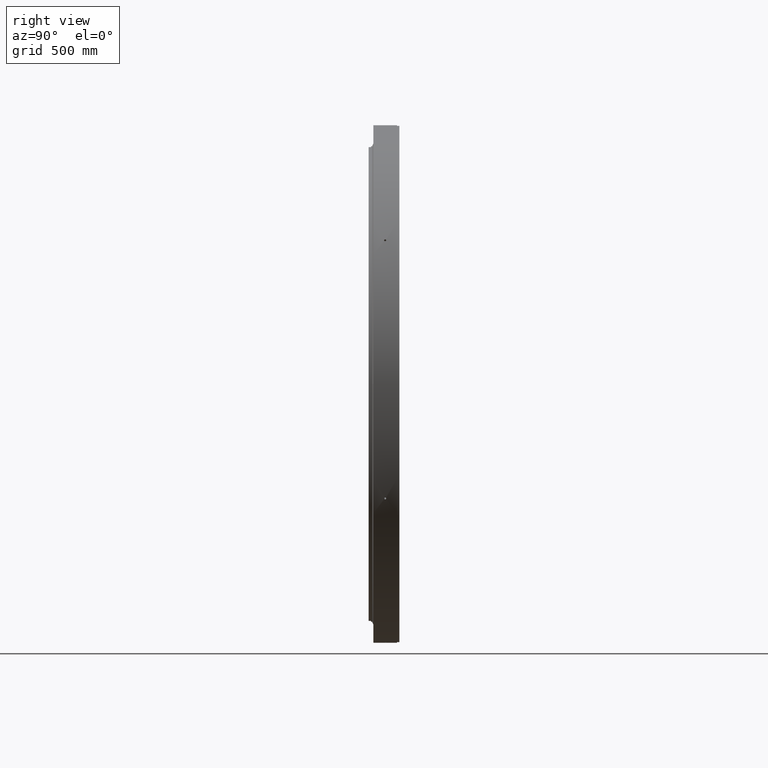
[diagram: clean part render]
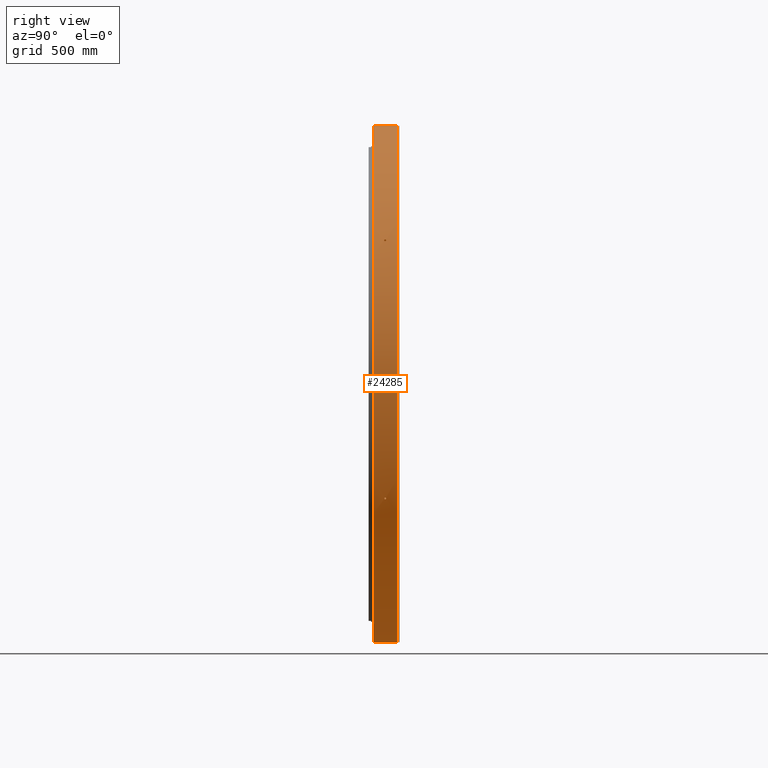
[diagram: same view with one face highlighted and labeled with its STEP entity id]
A machine part, right view. The second image highlights one B-rep face of the part: STEP entity #24285.
In plain terms, the highlighted cylindrical surface (partial cylindrical patch) has radius 1097.5 mm, axis along (0, -1, -0).
Its self-contained STEP definition (entity closure, byte-faithful):
#73 = ORIENTED_EDGE ( 'NONE', *, *, #28813, .F. ) ;
#224 = CARTESIAN_POINT ( 'NONE',  ( 912.5378995020361100, 4.499999983232450000, 609.7383307390241500 ) ) ;
#243 = CARTESIAN_POINT ( 'NONE',  ( 910.3498543650555300, -2.265789637349424600, 613.0057050081319400 ) ) ;
#327 = CARTESIAN_POINT ( 'NONE',  ( 910.7550180371598600, 3.161731403690899000, 612.3981934056763500 ) ) ;
#346 = CARTESIAN_POINT ( 'NONE',  ( 68.18893718354651400, 2.765460220137871100, -1095.382454497346100 ) ) ;
#431 = CARTESIAN_POINT ( 'NONE',  ( 910.0310799738661000, 0.2391090795432296900, 613.4728444865471600 ) ) ;
#451 = CARTESIAN_POINT ( 'NONE',  ( 983.7967049649508900, 4.382877028017383700, -486.4681479959126000 ) ) ;
#705 = CARTESIAN_POINT ( 'NONE',  ( 71.35263866576600800, -4.500000016767591800, -1095.178174691852500 ) ) ;
#766 = CARTESIAN_POINT ( 'NONE',  ( 984.7336266233876400, 4.439742533583422600, -484.5678248661136000 ) ) ;
#816 = CARTESIAN_POINT ( 'NONE',  ( 68.61993165268945900, -3.197407695075827200, -1095.352707974484200 ) ) ;
#932 = CARTESIAN_POINT ( 'NONE',  ( 67.28941847923424300, -0.06619500810931394600, -1095.435114007529800 ) ) ;
#1000 = CARTESIAN_POINT ( 'NONE',  ( 985.7251285425908200, 3.172688483100566200, -482.5476360061746300 ) ) ;
#1107 = CARTESIAN_POINT ( 'NONE',  ( 986.2821925867059500, 0.6262484178184799500, -481.4072132916784300 ) ) ;
#1178 = CARTESIAN_POINT ( 'NONE',  ( 76.26966760404383200, -0.01746724870365784800, -1094.846695882234800 ) ) ;
#1290 = CARTESIAN_POINT ( 'NONE',  ( 74.04158256470050500, -3.931889961238264500, -1095.000968683533500 ) ) ;
#1319 = EDGE_CURVE ( 'NONE', #23352, #24279, #31751, .T. ) ;
#1438 = CARTESIAN_POINT ( 'NONE',  ( 912.5378995020363400, -4.500000016767551800, 609.7383307390242600 ) ) ;
#1442 = CARTESIAN_POINT ( 'NONE',  ( 2.601341135008604100E-015, -22.16364734299516900, -7.744460120454373600E-016 ) ) ;
#1551 = CARTESIAN_POINT ( 'NONE',  ( 914.2864054385439700, -3.209744189989774300, 607.1133490319267600 ) ) ;
#1657 = CARTESIAN_POINT ( 'NONE',  ( 915.0294293143568900, -0.1107750201547480600, 605.9925357083707200 ) ) ;
#1675 = CARTESIAN_POINT ( 'NONE',  ( 986.2388264525659500, -1.166080515061297800, -481.5019973531369100 ) ) ;
#1771 = CARTESIAN_POINT ( 'NONE',  ( 982.9132370363265600, -3.197407695075369800, -488.2497499700593300 ) ) ;
#1831 = CARTESIAN_POINT ( 'NONE',  ( 72.71875459656436600, 4.439743989463296200, -1095.088249879918300 ) ) ;
#1887 = CARTESIAN_POINT ( 'NONE',  ( 982.3193461676414700, -0.06619500810242670600, -489.4432111948636900 ) ) ;
#1902 = CARTESIAN_POINT ( 'NONE',  ( 913.1921267789019800, 4.382877028017313500, 608.7588646611180800 ) ) ;
#1940 = CARTESIAN_POINT ( 'NONE',  ( 75.34457512825798600, 2.738322835730874000, -1094.910718904756800 ) ) ;
#2371 = AXIS2_PLACEMENT_3D ( 'NONE', #3535, #21564, #6130 ) ;
#2626 = VERTEX_POINT ( 'NONE', #16920 ) ;
#2728 = CARTESIAN_POINT ( 'NONE',  ( 910.0301623831983300, 0.0002739105560986134300, 613.4748183657820800 ) ) ;
#2824 = CARTESIAN_POINT ( 'NONE',  ( 911.0000509898268300, -3.598287907840402900, 612.0371154209349200 ) ) ;
#2913 = CARTESIAN_POINT ( 'NONE',  ( 910.7251214000212900, 3.106787147588669500, 612.4426549094808900 ) ) ;
#2917 = ORIENTED_EDGE ( 'NONE', *, *, #29714, .F. ) ;
#2933 = CARTESIAN_POINT ( 'NONE',  ( 69.51843838882982100, 3.932038729790863700, -1095.297431984197800 ) ) ;
#2935 = CARTESIAN_POINT ( 'NONE',  ( 982.3192627750792100, -2.316097242316461000E-008, -489.4436855857031800 ) ) ;
#3028 = CARTESIAN_POINT ( 'NONE',  ( 910.0301623831983300, 0.0002739105560986134300, 613.4748183657820800 ) ) ;
#3056 = CARTESIAN_POINT ( 'NONE',  ( 984.3178338321298500, 4.499999983232497100, -485.4118375153446400 ) ) ;
#3298 = CARTESIAN_POINT ( 'NONE',  ( 70.84047470035425000, -4.439702255745532800, -1095.211358202812800 ) ) ;
#3366 = EDGE_LOOP ( 'NONE', ( #26778, #2917, #14423, #20491 ) ) ;
#3413 = CARTESIAN_POINT ( 'NONE',  ( 68.60854869021766000, -3.186076337173788400, -1095.353421080562600 ) ) ;
#3530 = CARTESIAN_POINT ( 'NONE',  ( 67.28901109086749000, -0.02249327024288945400, -1095.435223340935400 ) ) ;
#3535 = CARTESIAN_POINT ( 'NONE',  ( 5.868486117720945300E-015, -49.99999999999987200, -1.747108677692887500E-015 ) ) ;
#3589 = CARTESIAN_POINT ( 'NONE',  ( 985.7370315257730900, 3.145279995475514000, -482.5233209583041700 ) ) ;
#3700 = CARTESIAN_POINT ( 'NONE',  ( 986.2996354738369300, 0.09451942255500460400, -481.3717260987532400 ) ) ;
#3780 = CARTESIAN_POINT ( 'NONE',  ( 76.26932570169016400, -0.06349154253395851400, -1094.846838106213700 ) ) ;
#3905 = CARTESIAN_POINT ( 'NONE',  ( 72.36780016582937900, -4.500000016767589100, -1095.111637491821100 ) ) ;
#4168 = CARTESIAN_POINT ( 'NONE',  ( 914.2979002452451600, -3.189160232434342200, 607.0960382035966600 ) ) ;
#4267 = CARTESIAN_POINT ( 'NONE',  ( 983.9010960670601700, -4.439702255739361700, -486.2560283947744300 ) ) ;
#4274 = CARTESIAN_POINT ( 'NONE',  ( 915.0301070131212100, -0.04507714348676061100, 605.9916975662196100 ) ) ;
#4292 = CARTESIAN_POINT ( 'NONE',  ( 986.0534403843581700, -2.265789637349314500, -481.8832477075387700 ) ) ;
#4386 = CARTESIAN_POINT ( 'NONE',  ( 982.9081631230706100, -3.186076337173833700, -488.2599644577688900 ) ) ;
#4441 = CARTESIAN_POINT ( 'NONE',  ( 73.83637575307813000, 4.014252917067884700, -1095.013361535506400 ) ) ;
#4499 = CARTESIAN_POINT ( 'NONE',  ( 982.3192371589657300, -0.02249327024038273000, -489.4436186702417300 ) ) ;
#4510 = CARTESIAN_POINT ( 'NONE',  ( 912.5378995020361100, 4.499999983232450000, 609.7383307390241500 ) ) ;
#4550 = CARTESIAN_POINT ( 'NONE',  ( 75.65048227629772300, 2.289108544850583500, -1094.889633876657200 ) ) ;
#4570 = LINE ( 'NONE', #22469, #18230 ) ;
#4795 = EDGE_CURVE ( 'NONE', #26895, #21974, #16905, .T. ) ;
#4800 = EDGE_CURVE ( 'NONE', #24279, #6011, #6302, .T. ) ;
#5087 = CARTESIAN_POINT ( 'NONE',  ( 984.3178338321298500, 4.499999983232497100, -485.4118375153446400 ) ) ;
#5097 = ORIENTED_EDGE ( 'NONE', *, *, #4795, .F. ) ;
#5307 = CARTESIAN_POINT ( 'NONE',  ( 910.0302821794598500, -0.03136014695189966200, 613.4747867868503600 ) ) ;
#5421 = CARTESIAN_POINT ( 'NONE',  ( 911.8832733604043600, -4.382848303121550200, 610.7177019620361300 ) ) ;
#5518 = CARTESIAN_POINT ( 'NONE',  ( 910.6514236039553200, 2.962532599781672300, 612.5522407132187900 ) ) ;
#5535 = CARTESIAN_POINT ( 'NONE',  ( 71.19214690530684200, 4.499999983232412700, -1095.188693877586500 ) ) ;
#5601 = LINE ( 'NONE', #29065, #31394 ) ;
#5902 = CARTESIAN_POINT ( 'NONE',  ( 69.72153478163706100, -4.013416554640188300, -1095.283059072108900 ) ) ;
#6011 = VERTEX_POINT ( 'NONE', #19599 ) ;
#6012 = CARTESIAN_POINT ( 'NONE',  ( 67.99929945843221900, -2.460531981859720200, -1095.391463000667000 ) ) ;
#6128 = CARTESIAN_POINT ( 'NONE',  ( 67.28897041490812100, -0.007205695980188448400, -1095.435262582063400 ) ) ;
#6130 = DIRECTION ( 'NONE',  ( 5.551115123125782700E-017, -3.793472749288689700E-017, 1.000000000000000000 ) ) ;
#6194 = CARTESIAN_POINT ( 'NONE',  ( 985.7854784900471300, 3.029410501801052600, -482.4243453701118900 ) ) ;
#6294 = DIRECTION ( 'NONE',  ( -1.173697223544192200E-016, 1.000000000000000000, 8.822830751849692900E-017 ) ) ;
#6302 = B_SPLINE_CURVE_WITH_KNOTS ( 'NONE', 3,
 ( #26045, #28634, #31212, #15794, #346, #18363, #2933, #20970, #5535, #23548 ),
 .UNSPECIFIED., .F., .F.,
 ( 4, 2, 2, 2, 4 ),
 ( 0.5001327818916325700, 0.6250995864187244300, 0.7500663909458162900, 0.8750331954729081400, 1.000000000000000000 ),
 .UNSPECIFIED. ) ;
#6376 = CARTESIAN_POINT ( 'NONE',  ( 76.26348067967936100, -0.2567127999465683700, -1094.847717071248100 ) ) ;
#6407 = EDGE_CURVE ( 'NONE', #17393, #26895, #27266, .T. ) ;
#6528 = EDGE_CURVE ( 'NONE', #9046, #29007, #29835, .T. ) ;
#6637 = CARTESIAN_POINT ( 'NONE',  ( 913.5227869983726800, -4.145600874871831800, 608.2615729323989600 ) ) ;
#6755 = CARTESIAN_POINT ( 'NONE',  ( 914.4960368546921900, -2.830677788866989200, 606.7976360153911600 ) ) ;
#6766 = CARTESIAN_POINT ( 'NONE',  ( 986.2998759440607700, -0.008347800966913610600, -481.3718442884412000 ) ) ;
#6854 = CARTESIAN_POINT ( 'NONE',  ( 983.4037208819872800, -4.013416554627578000, -487.2609092243353600 ) ) ;
#6857 = CARTESIAN_POINT ( 'NONE',  ( 915.0302666682492800, -0.01171491839850324200, 605.9915894569077200 ) ) ;
#6875 = CARTESIAN_POINT ( 'NONE',  ( 985.5397155083907100, -3.598287907840269200, -482.9306292956441700 ) ) ;
#6900 = CIRCLE ( 'NONE', #29448, 1097.500000000000000 ) ;
#6971 = CARTESIAN_POINT ( 'NONE',  ( 982.6364837763922000, -2.460531981842843500, -488.8066107297942200 ) ) ;
#7021 = DIRECTION ( 'NONE',  ( 1.173697223544192200E-016, -1.000000000000000000, -3.494217355385783800E-017 ) ) ;
#7025 = CARTESIAN_POINT ( 'NONE',  ( 74.68880287120212800, 3.448338068775783400, -1094.955662505075500 ) ) ;
#7063 = CARTESIAN_POINT ( 'NONE',  ( 71.77993433008977300, -4.500000016767590000, -1095.150168254366900 ) ) ;
#7087 = CARTESIAN_POINT ( 'NONE',  ( 982.3192508047995900, -0.007205695979453188500, -489.4436735172196200 ) ) ;
#7142 = CARTESIAN_POINT ( 'NONE',  ( 76.04413428059493200, 1.438962450433891600, -1094.862236665251200 ) ) ;
#7475 = VERTEX_POINT ( 'NONE', #19253 ) ;
#7912 = CARTESIAN_POINT ( 'NONE',  ( 910.0313034753276000, -0.1280020180876134100, 613.4737080425759400 ) ) ;
#7994 = CARTESIAN_POINT ( 'NONE',  ( 912.0148595022959600, 4.439742533575877600, 610.5204241836088400 ) ) ;
#8006 = CARTESIAN_POINT ( 'NONE',  ( 912.5378995020363400, -4.500000016767551800, 609.7383307390242600 ) ) ;
#8090 = CARTESIAN_POINT ( 'NONE',  ( 910.5481851436990200, 2.738265013289375500, 612.7057123205743200 ) ) ;
#8488 = CARTESIAN_POINT ( 'NONE',  ( 69.15183124348570200, -3.653221075928142300, -1095.319218855141100 ) ) ;
#8606 = CARTESIAN_POINT ( 'NONE',  ( 67.51401827766164800, -1.437042506700420700, -1095.421326452781600 ) ) ;
#8677 = ORIENTED_EDGE ( 'NONE', *, *, #27198, .F. ) ;
#8733 = CARTESIAN_POINT ( 'NONE',  ( 67.28896533048188600, -0.004604410396162232100, -1095.435269440904400 ) ) ;
#8798 = CARTESIAN_POINT ( 'NONE',  ( 985.8617530819123000, 2.828327746181565200, -482.2684765721870100 ) ) ;
#8925 = EDGE_CURVE ( 'NONE', #6011, #31995, #28163, .T. ) ;
#8982 = CARTESIAN_POINT ( 'NONE',  ( 76.23388014728124100, -0.5867728061178254500, -1094.850474504253700 ) ) ;
#9046 = VERTEX_POINT ( 'NONE', #5087 ) ;
#9238 = CARTESIAN_POINT ( 'NONE',  ( 913.9195589275834700, -3.751236185467976500, 607.6653384606534000 ) ) ;
#9283 = CARTESIAN_POINT ( 'NONE',  ( -1.953284746827274800E-013, 50.00000000000027700, -1097.500000000000000 ) ) ;
#9359 = CARTESIAN_POINT ( 'NONE',  ( 914.8417529838385500, -1.763920141843247700, 606.2761773979420900 ) ) ;
#9374 = CARTESIAN_POINT ( 'NONE',  ( 986.2998910283830600, -0.03136014695186684100, -481.3719491871105400 ) ) ;
#9461 = CARTESIAN_POINT ( 'NONE',  ( 983.1501844036178000, -3.653221075918390100, -487.7723668525071600 ) ) ;
#9467 = CARTESIAN_POINT ( 'NONE',  ( 915.0302887610676000, -0.004224009619075961400, 605.9915901041416600 ) ) ;
#9483 = CARTESIAN_POINT ( 'NONE',  ( 984.8386811201778500, -4.382848303121448000, -484.3552290352041600 ) ) ;
#9575 = CARTESIAN_POINT ( 'NONE',  ( 982.4197056941827700, -1.437042506667403100, -489.2418082863765700 ) ) ;
#9588 = CARTESIAN_POINT ( 'NONE',  ( 915.0302968266402100, -2.316102580031337200E-008, 605.9915933971710700 ) ) ;
#9620 = CARTESIAN_POINT ( 'NONE',  ( 74.96400227698276800, 3.172739574732600200, -1094.936823939046900 ) ) ;
#9681 = CARTESIAN_POINT ( 'NONE',  ( 982.3192542025167300, -0.004604410396078033800, -489.4436813498823000 ) ) ;
#9732 = CARTESIAN_POINT ( 'NONE',  ( 76.23021255733537800, 0.6263035944705973600, -1094.849041258847800 ) ) ;
#10510 = CARTESIAN_POINT ( 'NONE',  ( 910.0389320315971400, -0.3669906709226780600, 613.4633771851799800 ) ) ;
#10596 = CARTESIAN_POINT ( 'NONE',  ( 911.3911851878748400, 4.014239081954032800, 611.4508810157844900 ) ) ;
#10710 = CARTESIAN_POINT ( 'NONE',  ( 910.3769755717837600, 2.289046086583782700, 612.9600869409741800 ) ) ;
#10733 = CARTESIAN_POINT ( 'NONE',  ( 982.3736514307213400, 1.177865457651825500, -489.3399167126098600 ) ) ;
#10898 = CARTESIAN_POINT ( 'NONE',  ( 6.679197459402640700E-014, -49.99999999999991500, 1097.500000000000000 ) ) ;
#11094 = CARTESIAN_POINT ( 'NONE',  ( 68.87339174717236300, -3.431549365533876900, -1095.336788115144400 ) ) ;
#11210 = CARTESIAN_POINT ( 'NONE',  ( 67.32834592478408800, -0.6256154573501329100, -1095.432499635093100 ) ) ;
#11272 = CARTESIAN_POINT ( 'NONE',  ( 985.1009330973340600, 4.146168226461909100, -483.8203961905922500 ) ) ;
#11389 = CARTESIAN_POINT ( 'NONE',  ( 985.9791070481509200, 2.468412118953202200, -482.0285450273710800 ) ) ;
#11467 = CARTESIAN_POINT ( 'NONE',  ( 76.26969609074949100, 0.0003013363075116434600, -1094.846647981330300 ) ) ;
#11584 = CARTESIAN_POINT ( 'NONE',  ( 76.12647023859165100, -1.166011393596531300, -1094.858875202450900 ) ) ;
#11834 = CARTESIAN_POINT ( 'NONE',  ( 914.1144441274985900, -3.489101555534907600, 607.3722008483869100 ) ) ;
#11950 = CARTESIAN_POINT ( 'NONE',  ( 914.9887944423305700, -0.8681623217626230900, 606.0537575768473700 ) ) ;
#11967 = CARTESIAN_POINT ( 'NONE',  ( 986.2994674563708500, -0.1280020180875748000, -481.3733730274139500 ) ) ;
#12053 = CARTESIAN_POINT ( 'NONE',  ( 983.0261800809524900, -3.431549365528007800, -488.0222871597273400 ) ) ;
#12058 = CARTESIAN_POINT ( 'NONE',  ( 915.0302968266402100, -2.316102580031337200E-008, 605.9915933971710700 ) ) ;
#12082 = CARTESIAN_POINT ( 'NONE',  ( 984.3178338321299600, -4.500000016767503800, -485.4118375153447000 ) ) ;
#12167 = CARTESIAN_POINT ( 'NONE',  ( 982.3365457774696100, -0.6256154573185411800, -489.4081918518983800 ) ) ;
#12177 = CARTESIAN_POINT ( 'NONE',  ( 914.9676246742404800, 1.177865457651762000, 606.0905797911812000 ) ) ;
#12217 = CARTESIAN_POINT ( 'NONE',  ( 74.99101159590199500, 3.145331581479330600, -1094.934974675896000 ) ) ;
#12333 = CARTESIAN_POINT ( 'NONE',  ( 76.26967369412426500, 0.09455541117331364700, -1094.846403112976800 ) ) ;
#12518 = EDGE_CURVE ( 'NONE', #18128, #25917, #16330, .T. ) ;
#12655 = ORIENTED_EDGE ( 'NONE', *, *, #4800, .F. ) ;
#12982 = CARTESIAN_POINT ( 'NONE',  ( 910.0301837923857400, -0.008347800966945399500, 613.4748261727784200 ) ) ;
#13093 = CARTESIAN_POINT ( 'NONE',  ( 910.0636864029307800, -0.7327159428866311100, 613.4279300527707600 ) ) ;
#13188 = CARTESIAN_POINT ( 'NONE',  ( 910.9149975868045900, 3.448307353384322000, 612.1602627662742900 ) ) ;
#13290 = CARTESIAN_POINT ( 'NONE',  ( 910.1564314208639000, 1.438897800852267900, 613.2872882563883600 ) ) ;
#13313 = CARTESIAN_POINT ( 'NONE',  ( 982.7235010462278500, 2.765460220137972300, -488.6378753906580500 ) ) ;
#13685 = CARTESIAN_POINT ( 'NONE',  ( 68.72016813912965500, -3.294402531885704200, -1095.346422091993900 ) ) ;
#13750 = CARTESIAN_POINT ( 'NONE',  ( 984.5071540730512000, 4.499999983232486400, -485.0279340440197900 ) ) ;
#13799 = CARTESIAN_POINT ( 'NONE',  ( 67.29538970666929700, -0.2514981093699473800, -1095.434561062561200 ) ) ;
#13861 = CARTESIAN_POINT ( 'NONE',  ( 985.4790410378514000, 3.665395689966588000, -483.0499789629043900 ) ) ;
#13974 = CARTESIAN_POINT ( 'NONE',  ( 986.1496799357992100, 1.766153117482068800, -481.6794029598837600 ) ) ;
#14108 = EDGE_CURVE ( 'NONE', #31231, #7475, #15284, .T. ) ;
#14161 = CARTESIAN_POINT ( 'NONE',  ( 75.70361559354795100, -2.265740046220438700, -1094.888950679132700 ) ) ;
#14423 = ORIENTED_EDGE ( 'NONE', *, *, #19604, .T. ) ;
#14428 = CARTESIAN_POINT ( 'NONE',  ( 914.2095508453614900, -3.340846870250825600, 607.2290630266077200 ) ) ;
#14541 = CARTESIAN_POINT ( 'NONE',  ( 915.0236550860305400, -0.3358843994260788900, 606.0009913597173200 ) ) ;
#14558 = CARTESIAN_POINT ( 'NONE',  ( 986.2943349495586700, -0.3669906709226324300, -481.3851449796359800 ) ) ;
#14645 = CARTESIAN_POINT ( 'NONE',  ( 982.9579115456242600, -3.294402531882861100, -488.1597996851733100 ) ) ;
#14767 = CARTESIAN_POINT ( 'NONE',  ( 982.3218529169690800, -0.2514981093504257100, -489.4377634877299100 ) ) ;
#14777 = CARTESIAN_POINT ( 'NONE',  ( 914.5345638626771500, 2.765460220137887900, 606.7445791066899100 ) ) ;
#14820 = CARTESIAN_POINT ( 'NONE',  ( 75.10095209331812800, 3.029464083743852200, -1094.927443074831000 ) ) ;
#14861 = ORIENTED_EDGE ( 'NONE', *, *, #6407, .F. ) ;
#15284 = B_SPLINE_CURVE_WITH_KNOTS ( 'NONE', 3,
 ( #17085, #32533, #4267, #22295, #6854, #24890, #9461, #27484, #12053, #30060, #14645, #32655, #17203, #1771, #19805, #4386, #22417, #6971, #24995, #9575, #27597, #12167, #30170, #14767, #32763, #17313, #1887, #19924, #4499, #22534, #7087, #25105, #9681, #27709 ),
 .UNSPECIFIED., .F., .F.,
 ( 4, 2, 2, 2, 2, 1, 1, 1, 2, 2, 2, 2, 2, 2, 2, 1, 1, 1, 2, 4 ),
 ( 0.0000000000000000000, 0.1250331954734342800, 0.1875497932101513900, 0.2188080920785099000, 0.2344372415126925500, 0.2422518162297838700, 0.2461591035883264600, 0.2481127472675977400, 0.2490895691072274900, 0.2500663909468572300, 0.3125829886830515700, 0.3750995864192459600, 0.4376161841554403500, 0.4688744830235375100, 0.4845036324575852600, 0.4923182071746089500, 0.4962254945331207600, 0.4981791382123765800, 0.4991559600520045200, 0.5001327818916324600 ),
 .UNSPECIFIED. ) ;
#15586 = CARTESIAN_POINT ( 'NONE',  ( 910.0301652353742800, -0.001197594886125186400, 613.4748203525812200 ) ) ;
#15684 = CARTESIAN_POINT ( 'NONE',  ( 910.1606035168831600, -1.449327386706830600, 613.2858246215772600 ) ) ;
#15772 = CARTESIAN_POINT ( 'NONE',  ( 910.7610755887677700, 3.172688483100563100, 612.3891844634798600 ) ) ;
#15794 = CARTESIAN_POINT ( 'NONE',  ( 67.85605053856652100, 2.266285391154643700, -1095.403310495481700 ) ) ;
#15880 = CARTESIAN_POINT ( 'NONE',  ( 910.0519725690179500, 0.6262484178113856300, 613.4418274344674300 ) ) ;
#15903 = CARTESIAN_POINT ( 'NONE',  ( 983.3146199925896600, 3.932038729790961800, -487.4439823159467000 ) ) ;
#16260 = CARTESIAN_POINT ( 'NONE',  ( 68.63238051901967700, -3.209744189989879500, -1095.351927960502100 ) ) ;
#16298 = VERTEX_POINT ( 'NONE', #9283 ) ;
#16330 = CIRCLE ( 'NONE', #2371, 1097.500000000000000 ) ;
#16379 = CARTESIAN_POINT ( 'NONE',  ( 67.29021577001411500, -0.1107750201637237200, -1095.434998850796500 ) ) ;
#16437 = CARTESIAN_POINT ( 'NONE',  ( 912.5378995020361100, 4.499999983232450000, 609.7383307390241500 ) ) ;
#16440 = CARTESIAN_POINT ( 'NONE',  ( 985.7222007580121500, 3.179368269281526600, -482.5536166600208500 ) ) ;
#16544 = CARTESIAN_POINT ( 'NONE',  ( 986.2667504495083200, 0.8692179200555493200, -481.4390407212207500 ) ) ;
#16621 = CARTESIAN_POINT ( 'NONE',  ( 76.26969229481731800, -0.008262173784436277500, -1094.846670228106600 ) ) ;
#16740 = CARTESIAN_POINT ( 'NONE',  ( 74.53969368098961500, -3.598266612350063300, -1094.967742767785000 ) ) ;
#16884 = DIRECTION ( 'NONE',  ( 5.551115123125782700E-017, -3.477350020181299200E-017, 1.000000000000000000 ) ) ;
#16905 = B_SPLINE_CURVE_WITH_KNOTS ( 'NONE', 3,
 ( #2728, #15586, #12982, #20749, #5307, #23331, #7912, #25931, #10510, #28523, #13093, #31104, #15684, #243, #18255, #2824, #20862, #5421, #23434, #8006 ),
 .UNSPECIFIED., .F., .F.,
 ( 4, 2, 1, 1, 1, 1, 2, 2, 2, 2, 2, 4 ),
 ( 0.5001835344710237100, 0.5011597385052601900, 0.5021359425394965600, 0.5040883506079694200, 0.5079931667449150100, 0.5158027990188061000, 0.5314220635665867200, 0.5626605926621466300, 0.6251376508532663400, 0.7500917672355109600, 0.8750458836177554800, 1.000000000000000000 ),
 .UNSPECIFIED. ) ;
#16913 = ORIENTED_EDGE ( 'NONE', *, *, #8925, .F. ) ;
#16920 = CARTESIAN_POINT ( 'NONE',  ( 915.0302968266402100, -2.316102580031337200E-008, 605.9915933971710700 ) ) ;
#16974 = CARTESIAN_POINT ( 'NONE',  ( 914.2702528383379100, -3.238286653578051700, 607.1376727888390400 ) ) ;
#17085 = CARTESIAN_POINT ( 'NONE',  ( 984.3178338321299600, -4.500000016767503800, -485.4118375153447000 ) ) ;
#17093 = CARTESIAN_POINT ( 'NONE',  ( 915.0289121108662600, -0.1436213954329928800, 605.9932521624526800 ) ) ;
#17106 = ORIENTED_EDGE ( 'NONE', *, *, #25620, .F. ) ;
#17116 = CARTESIAN_POINT ( 'NONE',  ( 986.2760140180672600, -0.7327159428865730500, -481.4243064602701500 ) ) ;
#17147 = CARTESIAN_POINT ( 'NONE',  ( 71.77993433008975900, 4.499999983232411800, -1095.150168254366700 ) ) ;
#17203 = CARTESIAN_POINT ( 'NONE',  ( 982.9187859575677100, -3.209744189989129000, -488.2385789285781900 ) ) ;
#17313 = CARTESIAN_POINT ( 'NONE',  ( 982.3196450843750000, -0.1107750201530409200, -489.4424631424277500 ) ) ;
#17323 = CARTESIAN_POINT ( 'NONE',  ( 913.7961816037556000, 3.932038729790876500, 607.8534496682530100 ) ) ;
#17359 = CARTESIAN_POINT ( 'NONE',  ( 75.27407875052985300, 2.828384377476727000, -1094.915564209309700 ) ) ;
#17393 = VERTEX_POINT ( 'NONE', #16437 ) ;
#17399 = CYLINDRICAL_SURFACE ( 'NONE', #24574, 1097.500000000000000 ) ;
#18013 = ORIENTED_EDGE ( 'NONE', *, *, #1319, .F. ) ;
#18128 = VERTEX_POINT ( 'NONE', #19664 ) ;
#18193 = FACE_OUTER_BOUND ( 'NONE', #3366, .T. ) ;
#18230 = VECTOR ( 'NONE', #7021, 1000.000000000000000 ) ;
#18235 = CARTESIAN_POINT ( 'NONE',  ( 912.3000894637152700, 4.499999983232466000, 610.0942386127953800 ) ) ;
#18255 = CARTESIAN_POINT ( 'NONE',  ( 910.5359476485327800, -2.765066982846022400, 612.7289268924182600 ) ) ;
#18345 = CARTESIAN_POINT ( 'NONE',  ( 910.7459696312083700, 3.145279995475350500, 612.4116502732317700 ) ) ;
#18363 = CARTESIAN_POINT ( 'NONE',  ( 69.02029464073490300, 3.598500772399045600, -1095.329504523246400 ) ) ;
#18451 = CARTESIAN_POINT ( 'NONE',  ( 910.0299612020015700, 0.09451942255236660300, 613.4746770142998000 ) ) ;
#18470 = CARTESIAN_POINT ( 'NONE',  ( 984.0573042881433100, 4.499999983232502400, -485.9401391688415400 ) ) ;
#18475 = EDGE_LOOP ( 'NONE', ( #25315, #28761, #30951, #17106 ) ) ;
#18719 = CARTESIAN_POINT ( 'NONE',  ( 71.77993433008977300, -4.500000016767590000, -1095.150168254366900 ) ) ;
#18838 = CARTESIAN_POINT ( 'NONE',  ( 68.61164149857491200, -3.189160232434415000, -1095.353227340951700 ) ) ;
#18945 = CARTESIAN_POINT ( 'NONE',  ( 67.28915106823679100, -0.04507714349087695700, -1095.435166684067100 ) ) ;
#19005 = FACE_BOUND ( 'NONE', #18475, .T. ) ;
#19010 = CARTESIAN_POINT ( 'NONE',  ( 985.7299017395902200, 3.161731403690959800, -482.5378855414994100 ) ) ;
#19121 = CARTESIAN_POINT ( 'NONE',  ( 986.2986078441817900, 0.2391090795478079700, -481.3736112474852600 ) ) ;
#19203 = CARTESIAN_POINT ( 'NONE',  ( 76.26960942751551900, -0.03127480052283895800, -1094.846735713763600 ) ) ;
#19253 = CARTESIAN_POINT ( 'NONE',  ( 982.3192627750792100, -2.316097242316461000E-008, -489.4436855857031800 ) ) ;
#19325 = CARTESIAN_POINT ( 'NONE',  ( 72.95542200469753900, -4.382845426481127400, -1095.072930058902800 ) ) ;
#19414 = B_SPLINE_CURVE_WITH_KNOTS ( 'NONE', 3,
 ( #19603, #22207, #6766, #24796, #9374, #27394, #11967, #29963, #14558, #32561, #17116, #1675, #19725, #4292, #22320, #6875, #24913, #9483, #27506, #12082 ),
 .UNSPECIFIED., .F., .F.,
 ( 4, 2, 1, 1, 1, 1, 2, 2, 2, 2, 2, 4 ),
 ( 0.5001835344710248200, 0.5011597385052611900, 0.5021359425394975600, 0.5040883506079703000, 0.5079931667449155700, 0.5158027990188061000, 0.5314220635665873900, 0.5626605926621489600, 0.6251376508532740000, 0.7500917672355160700, 0.8750458836177579200, 1.000000000000000000 ),
 .UNSPECIFIED. ) ;
#19479 = DIRECTION ( 'NONE',  ( 1.173697223544192200E-016, -1.000000000000000000, -3.494217355385783800E-017 ) ) ;
#19583 = CARTESIAN_POINT ( 'NONE',  ( 914.2933053836332000, -3.197407695075735700, 607.1029580044272500 ) ) ;
#19599 = CARTESIAN_POINT ( 'NONE',  ( 71.77993433008975900, 4.499999983232411800, -1095.150168254366700 ) ) ;
#19603 = CARTESIAN_POINT ( 'NONE',  ( 986.2998584784093100, 0.0002739105561470776500, -481.3718296510393800 ) ) ;
#19604 = EDGE_CURVE ( 'NONE', #26989, #25917, #5601, .T. ) ;
#19664 = CARTESIAN_POINT ( 'NONE',  ( -1.953284746827274800E-013, -49.99999999999982900, -1097.500000000000000 ) ) ;
#19704 = CARTESIAN_POINT ( 'NONE',  ( 915.0299276884032900, -0.06619500810353951000, 605.9919028126678300 ) ) ;
#19725 = CARTESIAN_POINT ( 'NONE',  ( 986.2014056616139900, -1.449327386706746400, -481.5792918586107000 ) ) ;
#19805 = CARTESIAN_POINT ( 'NONE',  ( 982.9095417438240900, -3.189160232434169000, -488.2571891373572200 ) ) ;
#19860 = CARTESIAN_POINT ( 'NONE',  ( 73.54968862963461600, 4.146178172096214500, -1095.032633056350300 ) ) ;
#19924 = CARTESIAN_POINT ( 'NONE',  ( 982.3192580813623600, -0.04507714348595819700, -489.4434691178494700 ) ) ;
#19937 = CARTESIAN_POINT ( 'NONE',  ( 912.8651573828323100, 4.499999983232442900, 609.2485547087469500 ) ) ;
#19980 = CARTESIAN_POINT ( 'NONE',  ( 75.54054835630019200, 2.468473075881661300, -1094.897229565544400 ) ) ;
#20139 = CARTESIAN_POINT ( 'NONE',  ( 912.5378995020363400, -4.500000016767551800, 609.7383307390242600 ) ) ;
#20491 = ORIENTED_EDGE ( 'NONE', *, *, #12518, .F. ) ;
#20553 = B_SPLINE_CURVE_WITH_KNOTS ( 'NONE', 3,
 ( #2935, #20973, #10733, #28745, #13313, #31334, #15903, #451, #18470, #3056 ),
 .UNSPECIFIED., .F., .F.,
 ( 4, 2, 2, 2, 4 ),
 ( 0.5001327818916324600, 0.6250995864187243200, 0.7500663909458162900, 0.8750331954729081400, 1.000000000000000000 ),
 .UNSPECIFIED. ) ;
#20749 = CARTESIAN_POINT ( 'NONE',  ( 910.0302184514865800, -0.01755276374532502600, 613.4748174714071600 ) ) ;
#20862 = CARTESIAN_POINT ( 'NONE',  ( 911.2778788579129200, -3.931903492011001900, 611.6223547313661600 ) ) ;
#20947 = CARTESIAN_POINT ( 'NONE',  ( 910.6844777396160000, 3.029410501800348800, 612.5030943691256200 ) ) ;
#20970 = CARTESIAN_POINT ( 'NONE',  ( 70.60457818604490400, 4.382877028017290400, -1095.227012657028600 ) ) ;
#20973 = CARTESIAN_POINT ( 'NONE',  ( 982.3206432674333000, 0.5890485998998444800, -489.4443663618328100 ) ) ;
#21335 = CARTESIAN_POINT ( 'NONE',  ( 70.00858080614916900, -4.145600874872881600, -1095.264726942750000 ) ) ;
#21450 = CARTESIAN_POINT ( 'NONE',  ( 68.25414931832742100, -2.830677788873962300, -1095.375617584049000 ) ) ;
#21561 = CARTESIAN_POINT ( 'NONE',  ( 67.28897761526235400, -0.01171491839953895200, -1095.435250894808000 ) ) ;
#21564 = DIRECTION ( 'NONE',  ( 1.173697223544192200E-016, -1.000000000000000000, -3.494217355385783800E-017 ) ) ;
#21629 = CARTESIAN_POINT ( 'NONE',  ( 985.7534582128063200, 3.106787147588981200, -482.4897635423475300 ) ) ;
#21724 = CARTESIAN_POINT ( 'NONE',  ( -5.868486117720982400E-015, 50.00000000000018500, 1.747108677692898100E-015 ) ) ;
#21735 = CARTESIAN_POINT ( 'NONE',  ( 986.2998584784093100, 0.0002739105561470776500, -481.3718296510393800 ) ) ;
#21811 = CARTESIAN_POINT ( 'NONE',  ( 76.26816636177376600, -0.1279178713633764800, -1094.847080697748000 ) ) ;
#21930 = CARTESIAN_POINT ( 'NONE',  ( 71.77993433008977300, -4.500000016767590000, -1095.150168254366900 ) ) ;
#21974 = VERTEX_POINT ( 'NONE', #20139 ) ;
#22085 = CARTESIAN_POINT ( 'NONE',  ( 913.0606213667161900, -4.439702255744953700, 608.9553298080645600 ) ) ;
#22191 = CARTESIAN_POINT ( 'NONE',  ( 914.2996144328486700, -3.186076337173817200, 607.0934566227958800 ) ) ;
#22207 = CARTESIAN_POINT ( 'NONE',  ( 986.2998616251160200, -0.001197594886115870500, -481.3718311276964000 ) ) ;
#22295 = CARTESIAN_POINT ( 'NONE',  ( 983.5313678045125700, -4.145600874861325600, -487.0031540103764200 ) ) ;
#22304 = CARTESIAN_POINT ( 'NONE',  ( 915.0302260680939500, -0.02249327024080844500, 605.9916046706958900 ) ) ;
#22320 = CARTESIAN_POINT ( 'NONE',  ( 985.9067901466776200, -2.765066982845897100, -482.1827982763603000 ) ) ;
#22417 = CARTESIAN_POINT ( 'NONE',  ( 982.7501861730162300, -2.830677788865702600, -488.5779815686618700 ) ) ;
#22469 = CARTESIAN_POINT ( 'NONE',  ( -1.927271335477188600E-013, -22.16364734299513000, -1097.500000000000000 ) ) ;
#22473 = CARTESIAN_POINT ( 'NONE',  ( 74.40593309452422900, 3.665419903877828600, -1094.974876245406000 ) ) ;
#22534 = CARTESIAN_POINT ( 'NONE',  ( 982.3192442835156700, -0.01171491839827088300, -489.4436614379019900 ) ) ;
#22585 = CARTESIAN_POINT ( 'NONE',  ( 75.92821301889249200, 1.766218313069585000, -1094.870378157969500 ) ) ;
#23331 = CARTESIAN_POINT ( 'NONE',  ( 910.0305130522192500, -0.06357649274079946200, 613.4745917637158100 ) ) ;
#23352 = VERTEX_POINT ( 'NONE', #7063 ) ;
#23434 = CARTESIAN_POINT ( 'NONE',  ( 912.2106019344743100, -4.500000016767572200, 610.2281661647431300 ) ) ;
#23531 = CARTESIAN_POINT ( 'NONE',  ( 910.5876286968878000, 2.828327746179763600, 612.6470845023073900 ) ) ;
#23548 = CARTESIAN_POINT ( 'NONE',  ( 71.77993433008975900, 4.499999983232411800, -1095.150168254366700 ) ) ;
#23765 = EDGE_CURVE ( 'NONE', #16298, #18128, #4570, .T. ) ;
#23902 = CARTESIAN_POINT ( 'NONE',  ( 69.29384064239955900, -3.751236185468972200, -1095.310224277083100 ) ) ;
#24033 = CARTESIAN_POINT ( 'NONE',  ( 67.62969484402525200, -1.763920141867880900, -1095.414287225663000 ) ) ;
#24142 = CARTESIAN_POINT ( 'NONE',  ( 67.28896712937415700, -0.004224009619358380500, -1095.435270351366600 ) ) ;
#24206 = CARTESIAN_POINT ( 'NONE',  ( 985.8115134047042100, 2.962532599782776700, -482.3711464768833800 ) ) ;
#24279 = VERTEX_POINT ( 'NONE', #27155 ) ;
#24285 = ADVANCED_FACE ( 'NONE', ( #18193, #31922, #19005, #25090 ), #17399, .T. ) ;
#24306 = DIRECTION ( 'NONE',  ( -5.551115123125783900E-017, 8.851436415006942600E-017, -1.000000000000000000 ) ) ;
#24355 = ORIENTED_EDGE ( 'NONE', *, *, #24464, .F. ) ;
#24376 = B_SPLINE_CURVE_WITH_KNOTS ( 'NONE', 3,
 ( #11467, #26903, #16621, #1178, #19203, #3780, #21811, #6376, #24407, #8982, #27011, #11584, #29578, #14161, #32185, #16740, #1290, #19325, #3905, #21930 ),
 .UNSPECIFIED., .F., .F.,
 ( 4, 2, 1, 1, 1, 1, 2, 2, 2, 2, 2, 4 ),
 ( 0.5001774726441651200, 0.5011536885179069800, 0.5021299043916488400, 0.5040823361391326700, 0.5079871996341002200, 0.5157969266240350900, 0.5314163806039047300, 0.5626552885636441100, 0.6251331044831229800, 0.7500887363220819500, 0.8750443681610410300, 1.000000000000000000 ),
 .UNSPECIFIED. ) ;
#24407 = CARTESIAN_POINT ( 'NONE',  ( 76.25540953252208000, -0.3669096587447639400, -1094.848521529741000 ) ) ;
#24464 = EDGE_CURVE ( 'NONE', #31995, #23352, #24376, .T. ) ;
#24574 = AXIS2_PLACEMENT_3D ( 'NONE', #1442, #19479, #16884 ) ;
#24663 = CARTESIAN_POINT ( 'NONE',  ( 913.6821861003579700, -4.013416554639044300, 608.0221498477952800 ) ) ;
#24777 = CARTESIAN_POINT ( 'NONE',  ( 914.6371843179665600, -2.460531981845487200, 606.5848522708777200 ) ) ;
#24796 = CARTESIAN_POINT ( 'NONE',  ( 986.2998857380021000, -0.01755276374529289600, -481.3718786547881900 ) ) ;
#24890 = CARTESIAN_POINT ( 'NONE',  ( 983.2133995699789500, -3.751236185458088900, -487.6448858164452500 ) ) ;
#24902 = CARTESIAN_POINT ( 'NONE',  ( 915.0302803898873700, -0.007205695979603398200, 605.9915890648462700 ) ) ;
#24913 = CARTESIAN_POINT ( 'NONE',  ( 985.3194361487759400, -3.931903492010870900, -483.3786156320700800 ) ) ;
#24995 = CARTESIAN_POINT ( 'NONE',  ( 982.4714478278560800, -1.763920141838659400, -489.1381098277257700 ) ) ;
#25046 = CARTESIAN_POINT ( 'NONE',  ( 74.95737118436441900, 3.179406900950123100, -1094.937277895030500 ) ) ;
#25090 = FACE_BOUND ( 'NONE', #28489, .T. ) ;
#25105 = CARTESIAN_POINT ( 'NONE',  ( 982.3192558904462400, -0.004224009618981949800, -489.4436802472268900 ) ) ;
#25159 = CARTESIAN_POINT ( 'NONE',  ( 76.19492415035328700, 0.8692775450365725100, -1094.851581973227200 ) ) ;
#25315 = ORIENTED_EDGE ( 'NONE', *, *, #6528, .F. ) ;
#25620 = EDGE_CURVE ( 'NONE', #29007, #31231, #19414, .T. ) ;
#25917 = VERTEX_POINT ( 'NONE', #10898 ) ;
#25923 = CARTESIAN_POINT ( 'NONE',  ( 6.092348847630545300E-014, 50.00000000000008500, 1097.500000000000000 ) ) ;
#25931 = CARTESIAN_POINT ( 'NONE',  ( 910.0341987249464600, -0.2567952966222311100, 613.4699663602110600 ) ) ;
#26022 = CARTESIAN_POINT ( 'NONE',  ( 911.5512205187518500, 4.146168226447709800, 611.2122352587797400 ) ) ;
#26045 = CARTESIAN_POINT ( 'NONE',  ( 67.28896594843486400, -2.316106311400074300E-008, -1095.435278982871800 ) ) ;
#26133 = CARTESIAN_POINT ( 'NONE',  ( 910.4385188670271400, 2.468412118949608700, 612.8686817907141600 ) ) ;
#26444 = CARTESIAN_POINT ( 'NONE',  ( 984.3178338321299600, -4.500000016767503800, -485.4118375153447000 ) ) ;
#26523 = CARTESIAN_POINT ( 'NONE',  ( 68.94253342341369300, -3.489101555535565800, -1095.332431004898400 ) ) ;
#26641 = CARTESIAN_POINT ( 'NONE',  ( 67.36355289940091500, -0.8681623217914161700, -1095.430418953579900 ) ) ;
#26705 = CARTESIAN_POINT ( 'NONE',  ( 984.3178338321298500, 4.499999983232497100, -485.4118375153446400 ) ) ;
#26749 = CARTESIAN_POINT ( 'NONE',  ( 67.28896594843486400, -2.316106311400074300E-008, -1095.435278982871800 ) ) ;
#26778 = ORIENTED_EDGE ( 'NONE', *, *, #23765, .F. ) ;
#26818 = CARTESIAN_POINT ( 'NONE',  ( 985.8928044853050800, 2.738265013291636900, -482.2050035439765500 ) ) ;
#26895 = VERTEX_POINT ( 'NONE', #33251 ) ;
#26903 = CARTESIAN_POINT ( 'NONE',  ( 76.26969639224853400, -0.001170350704098150600, -1094.846651408138800 ) ) ;
#26989 = VERTEX_POINT ( 'NONE', #25923 ) ;
#27011 = CARTESIAN_POINT ( 'NONE',  ( 76.21234013947159300, -0.7326401297193397800, -1094.852235512232500 ) ) ;
#27155 = CARTESIAN_POINT ( 'NONE',  ( 67.28896594843486400, -2.316106311400074300E-008, -1095.435278982871800 ) ) ;
#27198 = EDGE_CURVE ( 'NONE', #21974, #2626, #27660, .T. ) ;
#27266 = B_SPLINE_CURVE_WITH_KNOTS ( 'NONE', 3,
 ( #224, #18235, #7994, #26022, #10596, #28613, #13188, #31192, #15772, #327, #18345, #2913, #20947, #5518, #23531, #8090, #26133, #10710, #28725, #13290, #31310, #15880, #431, #18451, #3028 ),
 .UNSPECIFIED., .F., .F.,
 ( 4, 2, 2, 2, 2, 1, 1, 1, 2, 2, 2, 2, 2, 4 ),
 ( 0.0000000000000000000, 0.1250458836177238400, 0.1875688254265919500, 0.2500917672354601200, 0.2510686882012246300, 0.2520456091669892600, 0.2539994510985239500, 0.2579071349615851300, 0.2657225026876938700, 0.2813532381399167500, 0.3126147090443626200, 0.3751376508532496800, 0.4376605926621366900, 0.5001835344710237100 ),
 .UNSPECIFIED. ) ;
#27269 = CARTESIAN_POINT ( 'NONE',  ( 913.9983531601342300, -3.653221075927245700, 607.5468520026469200 ) ) ;
#27373 = CARTESIAN_POINT ( 'NONE',  ( 914.9056874165269200, -1.437042506672589400, 606.1795181664094800 ) ) ;
#27394 = CARTESIAN_POINT ( 'NONE',  ( 986.2998375697740100, -0.06357649274076671000, -481.3722466403525000 ) ) ;
#27484 = CARTESIAN_POINT ( 'NONE',  ( 983.0569775509123900, -3.489101555528590000, -487.9602301565205400 ) ) ;
#27491 = CARTESIAN_POINT ( 'NONE',  ( 915.0302888720303800, -0.004604410396128137900, 605.9915880910240300 ) ) ;
#27506 = CARTESIAN_POINT ( 'NONE',  ( 984.5783949706955100, -4.500000016767494100, -484.8834717943799400 ) ) ;
#27534 = CARTESIAN_POINT ( 'NONE',  ( 72.20705943283643100, 4.499999983232411800, -1095.122172996077600 ) ) ;
#27597 = CARTESIAN_POINT ( 'NONE',  ( 982.3523473417294600, -0.8681623217572469500, -489.3766613767357400 ) ) ;
#27610 = CARTESIAN_POINT ( 'NONE',  ( 915.0315766422401100, 0.5890485998997860900, 605.9924485505545100 ) ) ;
#27650 = CARTESIAN_POINT ( 'NONE',  ( 74.97483317643504100, 3.161782693685670800, -1094.936082406584500 ) ) ;
#27660 = B_SPLINE_CURVE_WITH_KNOTS ( 'NONE', 3,
 ( #1438, #29725, #22085, #6637, #24663, #9238, #27269, #11834, #29838, #14428, #32432, #16974, #1551, #19583, #4168, #22191, #6755, #24777, #9359, #27373, #11950, #29943, #14541, #32546, #17093, #1657, #19704, #4274, #22304, #6857, #24902, #9467, #27491, #12058 ),
 .UNSPECIFIED., .F., .F.,
 ( 4, 2, 2, 2, 2, 1, 1, 1, 2, 2, 2, 2, 2, 2, 2, 1, 1, 1, 2, 4 ),
 ( 0.0000000000000000000, 0.1250331954726410800, 0.1875497932089585700, 0.2188080920771221800, 0.2344372415111997700, 0.2422518162282385500, 0.2461591035867636300, 0.2481127472660317500, 0.2490895691056621000, 0.2500663909452924800, 0.3125829886818782800, 0.3750995864184640800, 0.4376161841550499400, 0.4688744830233414500, 0.4845036324574866200, 0.4923182071745595400, 0.4962254945330960600, 0.4981791382123642600, 0.4991559600519983000, 0.5001327818916322400 ),
 .UNSPECIFIED. ) ;
#27709 = CARTESIAN_POINT ( 'NONE',  ( 982.3192627750792100, -2.316097242316461000E-008, -489.4436855857031800 ) ) ;
#27753 = CARTESIAN_POINT ( 'NONE',  ( 76.26752583493679100, 0.2391524332719145200, -1094.846455859270500 ) ) ;
#27755 = CARTESIAN_POINT ( 'NONE',  ( 76.26969609074949100, 0.0003013363075116434600, -1094.846647981330300 ) ) ;
#27886 = B_SPLINE_CURVE_WITH_KNOTS ( 'NONE', 3,
 ( #9588, #27610, #12177, #30183, #14777, #32778, #17323, #1902, #19937, #4510 ),
 .UNSPECIFIED., .F., .F.,
 ( 4, 2, 2, 2, 4 ),
 ( 0.5001327818916322400, 0.6250995864187242100, 0.7500663909458160600, 0.8750331954729080300, 1.000000000000000000 ),
 .UNSPECIFIED. ) ;
#28163 = B_SPLINE_CURVE_WITH_KNOTS ( 'NONE', 3,
 ( #17147, #27534, #1831, #19860, #4441, #22473, #7025, #25046, #9620, #27650, #12217, #30225, #14820, #32821, #17359, #1940, #19980, #4550, #22585, #7142, #25159, #9732, #27753, #12333, #30326 ),
 .UNSPECIFIED., .F., .F.,
 ( 4, 2, 2, 2, 2, 1, 1, 1, 2, 2, 2, 2, 2, 4 ),
 ( 0.0000000000000000000, 0.1250443681612044600, 0.1875665522418067400, 0.2500887363224089100, 0.2510656454486667700, 0.2520425545749246400, 0.2539963728274377600, 0.2579040093324651600, 0.2657192823425199600, 0.2813498283626296700, 0.3126109204028490500, 0.3751331044832877400, 0.4376552885637264300, 0.5001774726441651200 ),
 .UNSPECIFIED. ) ;
#28489 = EDGE_LOOP ( 'NONE', ( #16913, #12655, #18013, #24355 ) ) ;
#28523 = CARTESIAN_POINT ( 'NONE',  ( 910.0513900750787600, -0.5868507657522368200, 613.4457056231781300 ) ) ;
#28613 = CARTESIAN_POINT ( 'NONE',  ( 911.0730735983290700, 3.665395689953935500, 611.9248949544706900 ) ) ;
#28634 = CARTESIAN_POINT ( 'NONE',  ( 67.28906662518915000, 0.5890485998997568900, -1095.436814912385000 ) ) ;
#28725 = CARTESIAN_POINT ( 'NONE',  ( 910.2214394108776800, 1.766153117475557100, 613.1909732783585700 ) ) ;
#28745 = CARTESIAN_POINT ( 'NONE',  ( 982.5751195479447200, 2.266285391154740900, -488.9365916808592900 ) ) ;
#28761 = ORIENTED_EDGE ( 'NONE', *, *, #30651, .F. ) ;
#28813 = EDGE_CURVE ( 'NONE', #2626, #17393, #27886, .T. ) ;
#29007 = VERTEX_POINT ( 'NONE', #30941 ) ;
#29065 = CARTESIAN_POINT ( 'NONE',  ( 6.352482961131407500E-014, -22.16364734299520800, 1097.500000000000000 ) ) ;
#29097 = CARTESIAN_POINT ( 'NONE',  ( 68.77101907457857500, -3.340846870251216800, -1095.343226927748200 ) ) ;
#29217 = CARTESIAN_POINT ( 'NONE',  ( 67.30042569305007300, -0.3358843994455383800, -1095.434226048051600 ) ) ;
#29284 = CARTESIAN_POINT ( 'NONE',  ( 985.2275887199688200, 4.014239081969533300, -483.5624786500437700 ) ) ;
#29393 = CARTESIAN_POINT ( 'NONE',  ( 986.0274945826909100, 2.289046086588201000, -481.9295443951277800 ) ) ;
#29448 = AXIS2_PLACEMENT_3D ( 'NONE', #21724, #6294, #24306 ) ;
#29578 = CARTESIAN_POINT ( 'NONE',  ( 76.04082416510205200, -1.449263062744373400, -1094.865114896698700 ) ) ;
#29714 = EDGE_CURVE ( 'NONE', #26989, #16298, #6900, .T. ) ;
#29725 = CARTESIAN_POINT ( 'NONE',  ( 912.7758016205311800, -4.500000016767548200, 609.3822850575344300 ) ) ;
#29835 = B_SPLINE_CURVE_WITH_KNOTS ( 'NONE', 3,
 ( #26705, #13750, #766, #11272, #29284, #13861, #31873, #16440, #1000, #19010, #3589, #21629, #6194, #24206, #8798, #26818, #11389, #29393, #13974, #31990, #16544, #1107, #19121, #3700, #21735 ),
 .UNSPECIFIED., .F., .F.,
 ( 4, 2, 2, 2, 2, 1, 1, 1, 2, 2, 2, 2, 2, 4 ),
 ( 0.0000000000000000000, 0.1250458836173121700, 0.1875688254259632900, 0.2500917672346144600, 0.2510686882003805300, 0.2520456091661464900, 0.2539994510976785700, 0.2579071349607470800, 0.2657225026868884100, 0.2813532381391667900, 0.3126147090437194600, 0.3751376508528212500, 0.4376605926619230300, 0.5001835344710248200 ),
 .UNSPECIFIED. ) ;
#29838 = CARTESIAN_POINT ( 'NONE',  ( 914.1527883337793100, -3.431549365533314700, 607.3145009554247100 ) ) ;
#29943 = CARTESIAN_POINT ( 'NONE',  ( 915.0081998526852700, -0.6256154573235167500, 606.0243077831972900 ) ) ;
#29963 = CARTESIAN_POINT ( 'NONE',  ( 986.2976746891997700, -0.2567952966221949700, -481.3777512283167500 ) ) ;
#30060 = CARTESIAN_POINT ( 'NONE',  ( 982.9805699199421300, -3.340846870247306600, -488.1141639011466400 ) ) ;
#30170 = CARTESIAN_POINT ( 'NONE',  ( 982.3240807790829200, -0.3358843994224285900, -489.4332346883365400 ) ) ;
#30183 = CARTESIAN_POINT ( 'NONE',  ( 914.7190690093740400, 2.266285391154664100, 606.4667188146245300 ) ) ;
#30225 = CARTESIAN_POINT ( 'NONE',  ( 75.02828705189227800, 3.106839413473977600, -1094.932421860576400 ) ) ;
#30326 = CARTESIAN_POINT ( 'NONE',  ( 76.26969609074949100, 0.0003013363075116434600, -1094.846647981330300 ) ) ;
#30651 = EDGE_CURVE ( 'NONE', #7475, #9046, #20553, .T. ) ;
#30941 = CARTESIAN_POINT ( 'NONE',  ( 986.2998584784093100, 0.0002739105561470776500, -481.3718296510393800 ) ) ;
#30951 = ORIENTED_EDGE ( 'NONE', *, *, #14108, .F. ) ;
#31104 = CARTESIAN_POINT ( 'NONE',  ( 910.1123749070452500, -1.166080515061371800, 613.3568792299083700 ) ) ;
#31192 = CARTESIAN_POINT ( 'NONE',  ( 910.7647910946404900, 3.179368269281698000, 612.3836586007348600 ) ) ;
#31212 = CARTESIAN_POINT ( 'NONE',  ( 67.40602675647677700, 1.177865457651734200, -1095.430496503788600 ) ) ;
#31231 = VERTEX_POINT ( 'NONE', #26444 ) ;
#31310 = CARTESIAN_POINT ( 'NONE',  ( 910.0718148629396200, 0.8692179200478894500, 613.4125404365949000 ) ) ;
#31334 = CARTESIAN_POINT ( 'NONE',  ( 983.0933237521221600, 3.598500772399146000, -487.8914237260576700 ) ) ;
#31394 = VECTOR ( 'NONE', #31786, 1000.000000000000000 ) ;
#31702 = CARTESIAN_POINT ( 'NONE',  ( 68.66152181052459000, -3.238286653578254600, -1095.350101276842000 ) ) ;
#31751 = B_SPLINE_CURVE_WITH_KNOTS ( 'NONE', 3,
 ( #18719, #705, #3298, #21335, #5902, #23902, #8488, #26523, #11094, #29097, #13685, #31702, #16260, #816, #18838, #3413, #21450, #6012, #24033, #8606, #26641, #11210, #29217, #13799, #31817, #16379, #932, #18945, #3530, #21561, #6128, #24142, #8733, #26749 ),
 .UNSPECIFIED., .F., .F.,
 ( 4, 2, 2, 2, 2, 1, 1, 1, 2, 2, 2, 2, 2, 2, 2, 1, 1, 1, 2, 4 ),
 ( 0.0000000000000000000, 0.1250331954728717800, 0.1875497932093048200, 0.2188080920775213600, 0.2344372415116296500, 0.2422518162286837800, 0.2461591035872108300, 0.2481127472664743400, 0.2490895691061061300, 0.2500663909457379000, 0.3125829886822118500, 0.3750995864186857400, 0.4376161841551596300, 0.4688744830233967900, 0.4845036324575152100, 0.4923182071745742000, 0.4962254945331035500, 0.4981791382123680300, 0.4991559600520003000, 0.5001327818916325700 ),
 .UNSPECIFIED. ) ;
#31786 = DIRECTION ( 'NONE',  ( 1.173697223544192200E-016, -1.000000000000000000, -3.494217355385783800E-017 ) ) ;
#31817 = CARTESIAN_POINT ( 'NONE',  ( 67.29109483919512500, -0.1436213954439495800, -1095.434909166475100 ) ) ;
#31873 = CARTESIAN_POINT ( 'NONE',  ( 985.6038375363480100, 3.448307353392782800, -482.7953972152860700 ) ) ;
#31922 = FACE_BOUND ( 'NONE', #32584, .T. ) ;
#31990 = CARTESIAN_POINT ( 'NONE',  ( 986.2005871585317900, 1.438897800859645400, -481.5749469000679100 ) ) ;
#31995 = VERTEX_POINT ( 'NONE', #27755 ) ;
#32185 = CARTESIAN_POINT ( 'NONE',  ( 75.37087381910839700, -2.765027645699537700, -1094.911723041120900 ) ) ;
#32432 = CARTESIAN_POINT ( 'NONE',  ( 914.2377434064916300, -3.294402531885382700, 607.1866224068253400 ) ) ;
#32533 = CARTESIAN_POINT ( 'NONE',  ( 984.1284402862913800, -4.500000016767512700, -485.7958896343362200 ) ) ;
#32546 = CARTESIAN_POINT ( 'NONE',  ( 915.0264632102969200, -0.2514981093535155800, 605.9967975748336400 ) ) ;
#32561 = CARTESIAN_POINT ( 'NONE',  ( 986.2852599496808400, -0.5868507657521829800, -481.4047697427730600 ) ) ;
#32584 = EDGE_LOOP ( 'NONE', ( #14861, #73, #8677, #5097 ) ) ;
#32655 = CARTESIAN_POINT ( 'NONE',  ( 982.9317746488662800, -3.238286653576762000, -488.2124284880067600 ) ) ;
#32763 = CARTESIAN_POINT ( 'NONE',  ( 982.3200069500651400, -0.1436213954309191500, -489.4416570040248200 ) ) ;
#32778 = CARTESIAN_POINT ( 'NONE',  ( 914.0730291113832200, 3.598500772399062100, 607.4380807971908800 ) ) ;
#32821 = CARTESIAN_POINT ( 'NONE',  ( 75.16004213449437500, 2.962587233289888800, -1094.923390459922300 ) ) ;
#33251 = CARTESIAN_POINT ( 'NONE',  ( 910.0301623831983300, 0.0002739105560986134300, 613.4748183657820800 ) ) ;